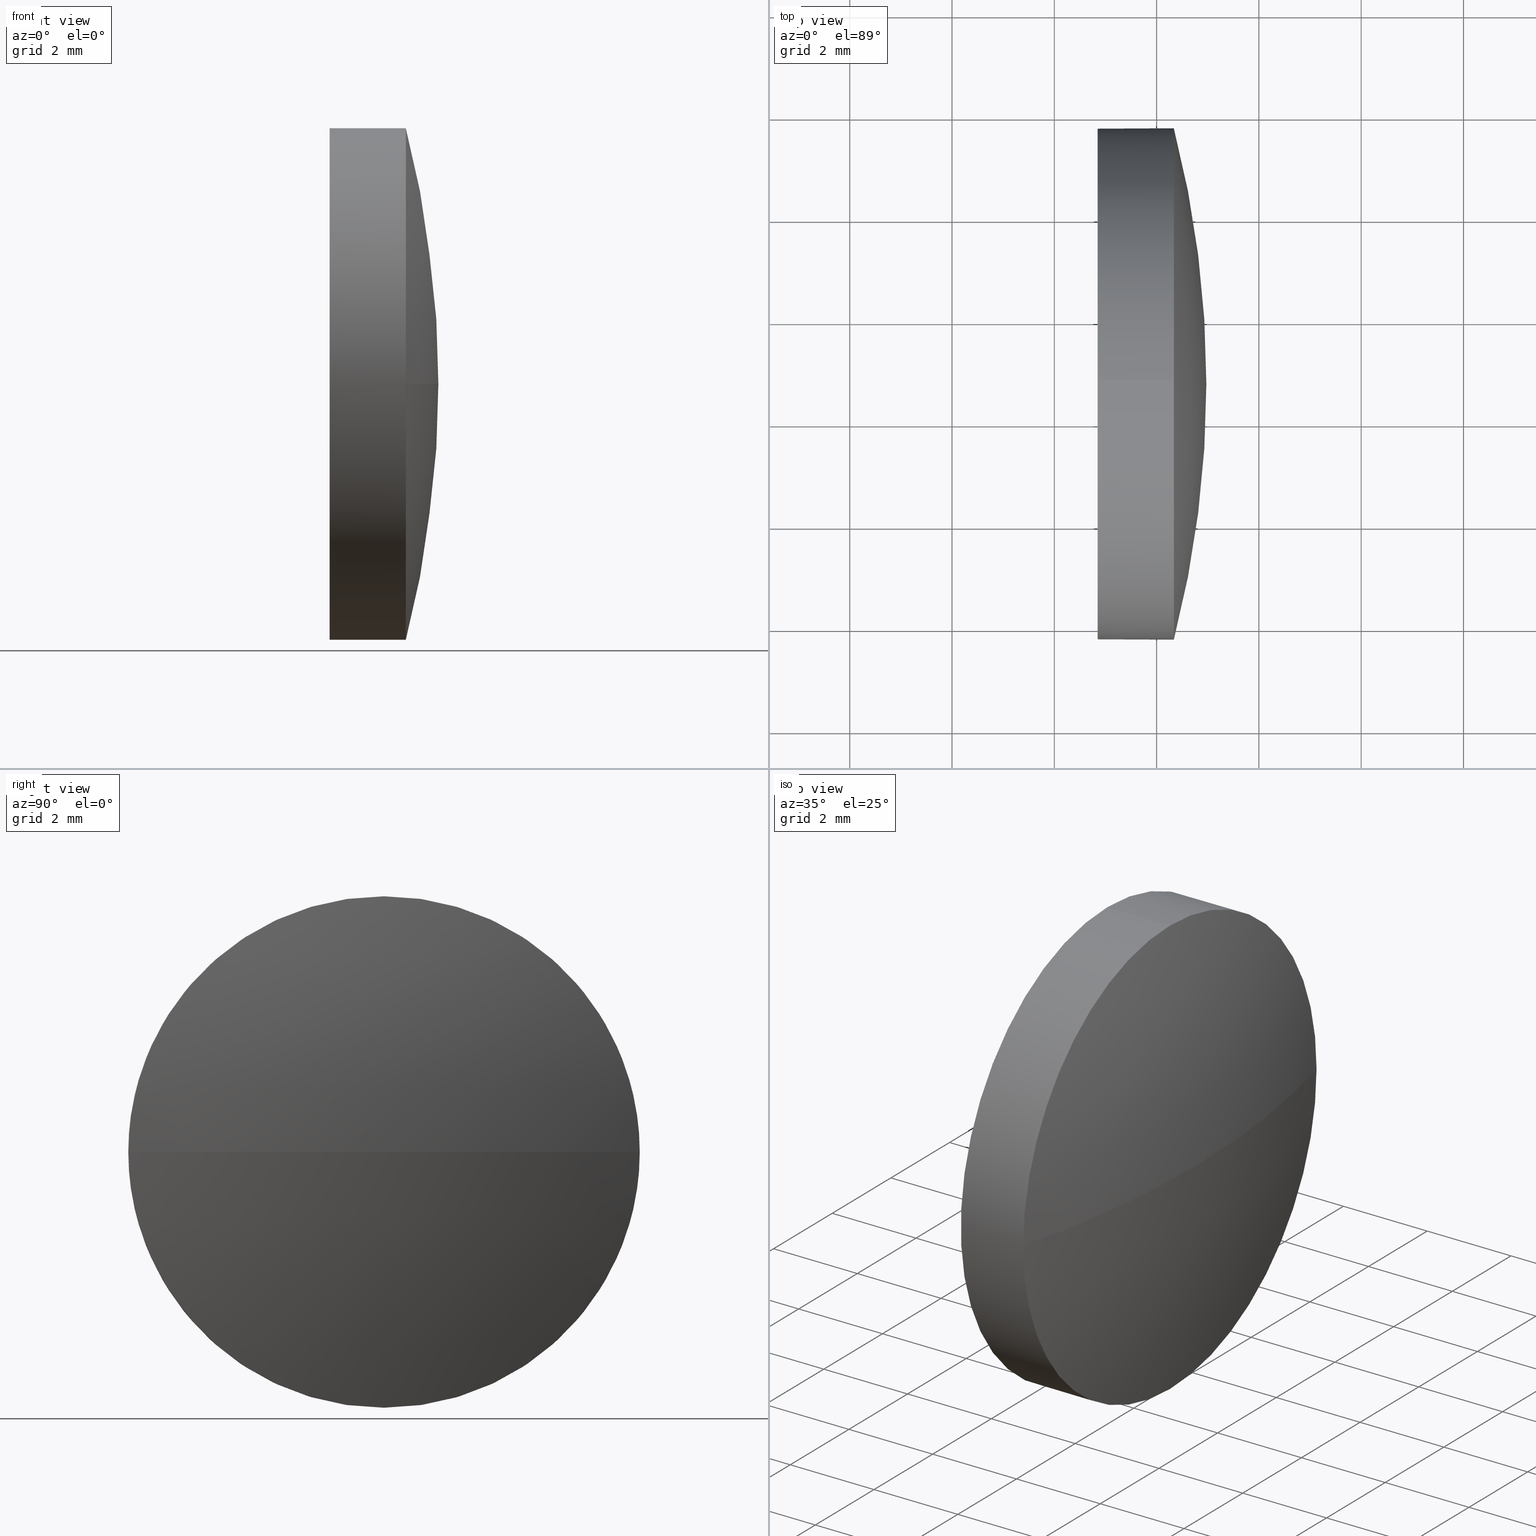
[diagram: canonical four-view strip — front | top / right | iso, engineering-drawing reading convention]
A machine part, canonical four-view strip (front | top / right | iso — engineering-drawing reading convention). The complete STEP part file that produces these views, byte-faithful:
ISO-10303-21;
HEADER;
FILE_DESCRIPTION (( 'STEP AP214' ),
    '1' );
FILE_NAME ('100105.STEP',
    '2019-05-13T08:44:46',
    ( '' ),
    ( '' ),
    'SwSTEP 2.0',
    'SolidWorks 2016',
    '' );
FILE_SCHEMA (( 'AUTOMOTIVE_DESIGN' ));
ENDSEC;

DATA;
#1 = EDGE_CURVE ( 'NONE', #103, #53, #95, .T. ) ;
#2 = DIRECTION ( 'NONE',  ( 0.0000000000000000000, 0.0000000000000000000, 1.000000000000000000 ) ) ;
#3 = DIRECTION ( 'NONE',  ( 0.0000000000000000000, 0.0000000000000000000, 1.000000000000000000 ) ) ;
#4 = DIRECTION ( 'NONE',  ( 0.0000000000000000000, -1.000000000000000000, 0.0000000000000000000 ) ) ;
#5 = EDGE_CURVE ( 'NONE', #102, #23, #133, .T. ) ;
#6 = SURFACE_STYLE_USAGE ( .BOTH. , #63 ) ;
#7 = CIRCLE ( 'NONE', #38, 19.96758150351990600 ) ;
#8 = EDGE_LOOP ( 'NONE', ( #13, #73, #62, #116, #56 ) ) ;
#9 = DIRECTION ( 'NONE',  ( -1.000000000000000000, -0.0000000000000000000, -0.0000000000000000000 ) ) ;
#10 = PRODUCT_DEFINITION ( 'δ֪', '', #108, #127 ) ;
#11 = SURFACE_STYLE_FILL_AREA ( #65 ) ;
#12 = VERTEX_POINT ( 'NONE', #17 ) ;
#13 = ORIENTED_EDGE ( 'NONE', *, *, #55, .F. ) ;
#14 = SPHERICAL_SURFACE ( 'NONE', #66, 19.96758150351988400 ) ;
#15 = DIRECTION ( 'NONE',  ( 0.0000000000000000000, 0.0000000000000000000, 1.000000000000000000 ) ) ;
#16 = DIRECTION ( 'NONE',  ( 0.0000000000000000000, -1.224646799147353200E-016, 1.000000000000000000 ) ) ;
#17 = CARTESIAN_POINT ( 'NONE',  ( 506.8469411676877000, 24.74889030591634800, 5.000000000000000900 ) ) ;
#18 = PRODUCT_CONTEXT ( 'NONE', #176, 'mechanical' ) ;
#19 = AXIS2_PLACEMENT_3D ( 'NONE', #160, #147, #80 ) ;
#20 = CARTESIAN_POINT ( 'NONE',  ( 505.9053906959132400, 24.74889030591634800, 5.000000000000000900 ) ) ;
#21 = CIRCLE ( 'NONE', #84, 5.000000000000000900 ) ;
#22 =( LENGTH_UNIT ( ) NAMED_UNIT ( * ) SI_UNIT ( .MILLI., .METRE. ) );
#23 = VERTEX_POINT ( 'NONE', #104 ) ;
#24 = AXIS2_PLACEMENT_3D ( 'NONE', #110, #44, #2 ) ;
#25 = ADVANCED_FACE ( 'NONE', ( #139 ), #14, .T. ) ;
#26 = FACE_OUTER_BOUND ( 'NONE', #153, .T. ) ;
#27 = DIRECTION ( 'NONE',  ( -1.000000000000000000, 0.0000000000000000000, 0.0000000000000000000 ) ) ;
#28 = AXIS2_PLACEMENT_3D ( 'NONE', #120, #16, #136 ) ;
#29 = ORIENTED_EDGE ( 'NONE', *, *, #77, .F. ) ;
#30 = DIRECTION ( 'NONE',  ( -1.000000000000000000, -0.0000000000000000000, -0.0000000000000000000 ) ) ;
#31 = DIRECTION ( 'NONE',  ( 1.000000000000000000, 0.0000000000000000000, 0.0000000000000000000 ) ) ;
#32 = SURFACE_SIDE_STYLE ('',( #11 ) ) ;
#33 = ORIENTED_EDGE ( 'NONE', *, *, #165, .F. ) ;
#34 = APPLICATION_PROTOCOL_DEFINITION ( 'draft international standard', 'automotive_design', 1998, #173 ) ;
#35 = ADVANCED_FACE ( 'NONE', ( #130 ), #83, .T. ) ;
#36 = COLOUR_RGB ( '',1.000000000000000000, 1.000000000000000000, 1.000000000000000000 ) ;
#37 = DIRECTION ( 'NONE',  ( -1.000000000000000000, -0.0000000000000000000, -0.0000000000000000000 ) ) ;
#38 = AXIS2_PLACEMENT_3D ( 'NONE', #107, #119, #27 ) ;
#39 = AXIS2_PLACEMENT_3D ( 'NONE', #124, #30, #94 ) ;
#40 = ORIENTED_EDGE ( 'NONE', *, *, #67, .T. ) ;
#41 = DIRECTION ( 'NONE',  ( 0.0000000000000000000, 0.0000000000000000000, 1.000000000000000000 ) ) ;
#42 = DIRECTION ( 'NONE',  ( -1.000000000000000000, -0.0000000000000000000, -0.0000000000000000000 ) ) ;
#43 = PRODUCT ( '100105', '100105', '', ( #18 ) ) ;
#44 = DIRECTION ( 'NONE',  ( -1.000000000000000000, -0.0000000000000000000, -0.0000000000000000000 ) ) ;
#45 = VECTOR ( 'NONE', #46, 1000.000000000000000 ) ;
#46 = DIRECTION ( 'NONE',  ( -1.000000000000000000, -0.0000000000000000000, -0.0000000000000000000 ) ) ;
#47 = PRODUCT_RELATED_PRODUCT_CATEGORY ( 'part', '', ( #43 ) ) ;
#48 =( NAMED_UNIT ( * ) PLANE_ANGLE_UNIT ( ) SI_UNIT ( $, .RADIAN. ) );
#49 = CARTESIAN_POINT ( 'NONE',  ( 508.3369411676876600, 24.74889030591634800, 0.0000000000000000000 ) ) ;
#50 = ORIENTED_EDGE ( 'NONE', *, *, #1, .F. ) ;
#51 = AXIS2_PLACEMENT_3D ( 'NONE', #74, #114, #97 ) ;
#52 = AXIS2_PLACEMENT_3D ( 'NONE', #145, #9, #3 ) ;
#53 = VERTEX_POINT ( 'NONE', #92 ) ;
#54 = UNCERTAINTY_MEASURE_WITH_UNIT (LENGTH_MEASURE( 1.000000000000000100E-005 ), #22, 'distance_accuracy_value', 'NONE');
#55 = EDGE_CURVE ( 'NONE', #103, #60, #181, .T. ) ;
#56 = ORIENTED_EDGE ( 'NONE', *, *, #59, .F. ) ;
#57 = AXIS2_PLACEMENT_3D ( 'NONE', #131, #37, #109 ) ;
#58 =( GEOMETRIC_REPRESENTATION_CONTEXT ( 3 ) GLOBAL_UNCERTAINTY_ASSIGNED_CONTEXT ( ( #122 ) ) GLOBAL_UNIT_ASSIGNED_CONTEXT ( ( #159, #48, #79 ) ) REPRESENTATION_CONTEXT ( 'NONE', 'WORKASPACE' ) );
#59 = EDGE_CURVE ( 'NONE', #60, #12, #21, .T. ) ;
#60 = VERTEX_POINT ( 'NONE', #142 ) ;
#61 = DIRECTION ( 'NONE',  ( -1.000000000000000000, -0.0000000000000000000, -0.0000000000000000000 ) ) ;
#62 = ORIENTED_EDGE ( 'NONE', *, *, #99, .T. ) ;
#63 = SURFACE_SIDE_STYLE ('',( #71 ) ) ;
#64 = EDGE_LOOP ( 'NONE', ( #29, #105, #135, #118 ) ) ;
#65 = FILL_AREA_STYLE ('',( #137 ) ) ;
#66 = AXIS2_PLACEMENT_3D ( 'NONE', #156, #171, #186 ) ;
#67 = EDGE_CURVE ( 'NONE', #12, #60, #115, .T. ) ;
#68 = ORIENTED_EDGE ( 'NONE', *, *, #86, .T. ) ;
#69 = ORIENTED_EDGE ( 'NONE', *, *, #165, .T. ) ;
#70 = STYLED_ITEM ( 'NONE', ( #117 ), #100 ) ;
#71 = SURFACE_STYLE_FILL_AREA ( #146 ) ;
#72 = STYLED_ITEM ( 'NONE', ( #185 ), #129 ) ;
#73 = ORIENTED_EDGE ( 'NONE', *, *, #1, .T. ) ;
#74 = CARTESIAN_POINT ( 'NONE',  ( 508.3369411676876600, 24.74889030591634800, 0.0000000000000000000 ) ) ;
#75 = CARTESIAN_POINT ( 'NONE',  ( 506.8469411676877000, 24.74889030591634800, 0.0000000000000000000 ) ) ;
#76 = COLOUR_RGB ( '',1.000000000000000000, 1.000000000000000000, 1.000000000000000000 ) ;
#77 = EDGE_CURVE ( 'NONE', #102, #53, #7, .T. ) ;
#78 =( NAMED_UNIT ( * ) PLANE_ANGLE_UNIT ( ) SI_UNIT ( $, .RADIAN. ) );
#79 =( NAMED_UNIT ( * ) SI_UNIT ( $, .STERADIAN. ) SOLID_ANGLE_UNIT ( ) );
#80 = DIRECTION ( 'NONE',  ( 1.000000000000000000, 0.0000000000000000000, 0.0000000000000000000 ) ) ;
#81 = AXIS2_PLACEMENT_3D ( 'NONE', #49, #121, #175 ) ;
#82 = AXIS2_PLACEMENT_3D ( 'NONE', #90, #41, #4 ) ;
#83 = CYLINDRICAL_SURFACE ( 'NONE', #24, 5.000000000000000900 ) ;
#84 = AXIS2_PLACEMENT_3D ( 'NONE', #134, #42, #144 ) ;
#85 = LINE ( 'NONE', #20, #45 ) ;
#86 = EDGE_CURVE ( 'NONE', #183, #23, #154, .T. ) ;
#87 = AXIS2_PLACEMENT_3D ( 'NONE', #75, #31, #93 ) ;
#88 = VECTOR ( 'NONE', #61, 1000.000000000000000 ) ;
#89 = ORIENTED_EDGE ( 'NONE', *, *, #59, .T. ) ;
#90 = CARTESIAN_POINT ( 'NONE',  ( 489.0055079280205100, 24.74889030591642200, 0.0000000000000000000 ) ) ;
#91 =( GEOMETRIC_REPRESENTATION_CONTEXT ( 3 ) GLOBAL_UNCERTAINTY_ASSIGNED_CONTEXT ( ( #161 ) ) GLOBAL_UNIT_ASSIGNED_CONTEXT ( ( #172, #78, #140 ) ) REPRESENTATION_CONTEXT ( 'NONE', 'WORKASPACE' ) );
#92 = CARTESIAN_POINT ( 'NONE',  ( 508.3369411676876600, 19.74889030591638000, 0.0000000000000000000 ) ) ;
#93 = DIRECTION ( 'NONE',  ( 0.0000000000000000000, 0.0000000000000000000, -1.000000000000000000 ) ) ;
#94 = DIRECTION ( 'NONE',  ( 0.0000000000000000000, 0.0000000000000000000, 1.000000000000000000 ) ) ;
#95 = CIRCLE ( 'NONE', #57, 5.000000000000000900 ) ;
#96 = APPLICATION_PROTOCOL_DEFINITION ( 'draft international standard', 'automotive_design', 1998, #176 ) ;
#97 = DIRECTION ( 'NONE',  ( 0.0000000000000000000, 0.0000000000000000000, 1.000000000000000000 ) ) ;
#98 = PRESENTATION_LAYER_ASSIGNMENT (  '', '', ( #70 ) ) ;
#99 = EDGE_CURVE ( 'NONE', #53, #183, #174, .T. ) ;
#100 = ADVANCED_BREP_SHAPE_REPRESENTATION ( '100105', ( #129, #19 ), #58 ) ;
#101 = ADVANCED_FACE ( 'NONE', ( #163 ), #111, .T. ) ;
#102 = VERTEX_POINT ( 'NONE', #158 ) ;
#103 = VERTEX_POINT ( 'NONE', #112 ) ;
#104 = CARTESIAN_POINT ( 'NONE',  ( 508.3369411676876600, 29.74889030591639000, 6.123233995736721900E-016 ) ) ;
#105 = ORIENTED_EDGE ( 'NONE', *, *, #5, .T. ) ;
#106 = PRESENTATION_LAYER_ASSIGNMENT (  '', '', ( #72 ) ) ;
#107 = CARTESIAN_POINT ( 'NONE',  ( 489.0055079280205100, 24.74889030591642200, 0.0000000000000000000 ) ) ;
#108 = PRODUCT_DEFINITION_FORMATION_WITH_SPECIFIED_SOURCE ( '�κ�', '', #43, .NOT_KNOWN. ) ;
#109 = DIRECTION ( 'NONE',  ( 0.0000000000000000000, 0.0000000000000000000, 1.000000000000000000 ) ) ;
#110 = CARTESIAN_POINT ( 'NONE',  ( 505.9053906959132400, 24.74889030591634800, 0.0000000000000000000 ) ) ;
#111 = SPHERICAL_SURFACE ( 'NONE', #82, 19.96758150351988400 ) ;
#112 = CARTESIAN_POINT ( 'NONE',  ( 508.3369411676876600, 24.74889030591634800, -5.000000000000000900 ) ) ;
#113 = FILL_AREA_STYLE_COLOUR ( '', #36 ) ;
#114 = DIRECTION ( 'NONE',  ( -1.000000000000000000, -0.0000000000000000000, -0.0000000000000000000 ) ) ;
#115 = CIRCLE ( 'NONE', #155, 5.000000000000000900 ) ;
#116 = ORIENTED_EDGE ( 'NONE', *, *, #180, .T. ) ;
#117 = PRESENTATION_STYLE_ASSIGNMENT (( #6 ) ) ;
#118 = ORIENTED_EDGE ( 'NONE', *, *, #99, .F. ) ;
#119 = DIRECTION ( 'NONE',  ( 0.0000000000000000000, 0.0000000000000000000, -1.000000000000000000 ) ) ;
#120 = CARTESIAN_POINT ( 'NONE',  ( 489.0055079280205100, 24.74889030591642200, 0.0000000000000000000 ) ) ;
#121 = DIRECTION ( 'NONE',  ( -1.000000000000000000, -0.0000000000000000000, -0.0000000000000000000 ) ) ;
#122 = UNCERTAINTY_MEASURE_WITH_UNIT (LENGTH_MEASURE( 1.000000000000000100E-005 ), #159, 'distance_accuracy_value', 'NONE');
#123 = CARTESIAN_POINT ( 'NONE',  ( 508.3369411676876600, 24.74889030591634800, 5.000000000000000900 ) ) ;
#124 = CARTESIAN_POINT ( 'NONE',  ( 505.9053906959132400, 24.74889030591634800, 0.0000000000000000000 ) ) ;
#125 =( NAMED_UNIT ( * ) PLANE_ANGLE_UNIT ( ) SI_UNIT ( $, .RADIAN. ) );
#126 =( NAMED_UNIT ( * ) SI_UNIT ( $, .STERADIAN. ) SOLID_ANGLE_UNIT ( ) );
#127 = PRODUCT_DEFINITION_CONTEXT ( 'detailed design', #173, 'design' ) ;
#128 = EDGE_LOOP ( 'NONE', ( #166, #143, #50, #33 ) ) ;
#129 = MANIFOLD_SOLID_BREP ( '��ת1', #179 ) ;
#130 = FACE_OUTER_BOUND ( 'NONE', #162, .T. ) ;
#131 = CARTESIAN_POINT ( 'NONE',  ( 508.3369411676876600, 24.74889030591634800, 0.0000000000000000000 ) ) ;
#132 = CARTESIAN_POINT ( 'NONE',  ( 505.9053906959132400, 24.74889030591634800, -5.000000000000000900 ) ) ;
#133 = CIRCLE ( 'NONE', #28, 19.96758150351988400 ) ;
#134 = CARTESIAN_POINT ( 'NONE',  ( 506.8469411676877000, 24.74889030591634800, 0.0000000000000000000 ) ) ;
#135 = ORIENTED_EDGE ( 'NONE', *, *, #86, .F. ) ;
#136 = DIRECTION ( 'NONE',  ( 0.0000000000000000000, -1.000000000000000000, -1.224646799147353000E-016 ) ) ;
#137 = FILL_AREA_STYLE_COLOUR ( '', #76 ) ;
#138 = SURFACE_STYLE_USAGE ( .BOTH. , #32 ) ;
#139 = FACE_OUTER_BOUND ( 'NONE', #128, .T. ) ;
#140 =( NAMED_UNIT ( * ) SI_UNIT ( $, .STERADIAN. ) SOLID_ANGLE_UNIT ( ) );
#141 = ORIENTED_EDGE ( 'NONE', *, *, #55, .T. ) ;
#142 = CARTESIAN_POINT ( 'NONE',  ( 506.8469411676877000, 24.74889030591634800, -5.000000000000000900 ) ) ;
#143 = ORIENTED_EDGE ( 'NONE', *, *, #77, .T. ) ;
#144 = DIRECTION ( 'NONE',  ( 0.0000000000000000000, 0.0000000000000000000, 1.000000000000000000 ) ) ;
#145 = CARTESIAN_POINT ( 'NONE',  ( 508.3369411676876600, 24.74889030591634800, 0.0000000000000000000 ) ) ;
#146 = FILL_AREA_STYLE ('',( #113 ) ) ;
#147 = DIRECTION ( 'NONE',  ( 0.0000000000000000000, 0.0000000000000000000, 1.000000000000000000 ) ) ;
#148 = PLANE ( 'NONE',  #87 ) ;
#149 = CIRCLE ( 'NONE', #81, 5.000000000000000900 ) ;
#150 = ORIENTED_EDGE ( 'NONE', *, *, #180, .F. ) ;
#151 = ADVANCED_FACE ( 'NONE', ( #152 ), #177, .T. ) ;
#152 = FACE_OUTER_BOUND ( 'NONE', #8, .T. ) ;
#153 = EDGE_LOOP ( 'NONE', ( #40, #89 ) ) ;
#154 = CIRCLE ( 'NONE', #51, 5.000000000000000900 ) ;
#155 = AXIS2_PLACEMENT_3D ( 'NONE', #170, #168, #15 ) ;
#156 = CARTESIAN_POINT ( 'NONE',  ( 489.0055079280205100, 24.74889030591642200, 0.0000000000000000000 ) ) ;
#157 = SHAPE_DEFINITION_REPRESENTATION ( #169, #100 ) ;
#158 = CARTESIAN_POINT ( 'NONE',  ( 508.9730894315404200, 24.74889030591642200, 0.0000000000000000000 ) ) ;
#159 =( LENGTH_UNIT ( ) NAMED_UNIT ( * ) SI_UNIT ( .MILLI., .METRE. ) );
#160 = CARTESIAN_POINT ( 'NONE',  ( 0.0000000000000000000, 0.0000000000000000000, 0.0000000000000000000 ) ) ;
#161 = UNCERTAINTY_MEASURE_WITH_UNIT (LENGTH_MEASURE( 1.000000000000000100E-005 ), #172, 'distance_accuracy_value', 'NONE');
#162 = EDGE_LOOP ( 'NONE', ( #69, #141, #167, #150, #68 ) ) ;
#163 = FACE_OUTER_BOUND ( 'NONE', #64, .T. ) ;
#164 = MECHANICAL_DESIGN_GEOMETRIC_PRESENTATION_REPRESENTATION (  '', ( #72 ), #91 ) ;
#165 = EDGE_CURVE ( 'NONE', #23, #103, #149, .T. ) ;
#166 = ORIENTED_EDGE ( 'NONE', *, *, #5, .F. ) ;
#167 = ORIENTED_EDGE ( 'NONE', *, *, #67, .F. ) ;
#168 = DIRECTION ( 'NONE',  ( -1.000000000000000000, -0.0000000000000000000, -0.0000000000000000000 ) ) ;
#169 = PRODUCT_DEFINITION_SHAPE ( 'NONE', 'NONE',  #10 ) ;
#170 = CARTESIAN_POINT ( 'NONE',  ( 506.8469411676877000, 24.74889030591634800, 0.0000000000000000000 ) ) ;
#171 = DIRECTION ( 'NONE',  ( 0.0000000000000000000, 0.0000000000000000000, 1.000000000000000000 ) ) ;
#172 =( LENGTH_UNIT ( ) NAMED_UNIT ( * ) SI_UNIT ( .MILLI., .METRE. ) );
#173 = APPLICATION_CONTEXT ( 'automotive_design' ) ;
#174 = CIRCLE ( 'NONE', #52, 5.000000000000000900 ) ;
#175 = DIRECTION ( 'NONE',  ( 0.0000000000000000000, 0.0000000000000000000, 1.000000000000000000 ) ) ;
#176 = APPLICATION_CONTEXT ( 'automotive_design' ) ;
#177 = CYLINDRICAL_SURFACE ( 'NONE', #39, 5.000000000000000900 ) ;
#178 =( GEOMETRIC_REPRESENTATION_CONTEXT ( 3 ) GLOBAL_UNCERTAINTY_ASSIGNED_CONTEXT ( ( #54 ) ) GLOBAL_UNIT_ASSIGNED_CONTEXT ( ( #22, #125, #126 ) ) REPRESENTATION_CONTEXT ( 'NONE', 'WORKASPACE' ) );
#179 = CLOSED_SHELL ( 'NONE', ( #35, #101, #25, #151, #182 ) ) ;
#180 = EDGE_CURVE ( 'NONE', #183, #12, #85, .T. ) ;
#181 = LINE ( 'NONE', #132, #88 ) ;
#182 = ADVANCED_FACE ( 'NONE', ( #26 ), #148, .F. ) ;
#183 = VERTEX_POINT ( 'NONE', #123 ) ;
#184 = MECHANICAL_DESIGN_GEOMETRIC_PRESENTATION_REPRESENTATION (  '', ( #70 ), #178 ) ;
#185 = PRESENTATION_STYLE_ASSIGNMENT (( #138 ) ) ;
#186 = DIRECTION ( 'NONE',  ( 0.0000000000000000000, -1.000000000000000000, 0.0000000000000000000 ) ) ;
ENDSEC;
END-ISO-10303-21;
